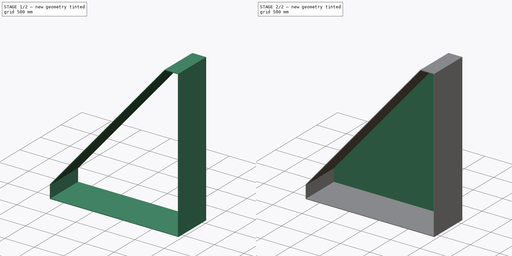
[diagram: build sequence overview — one tinted view per stage of 2, left to right]
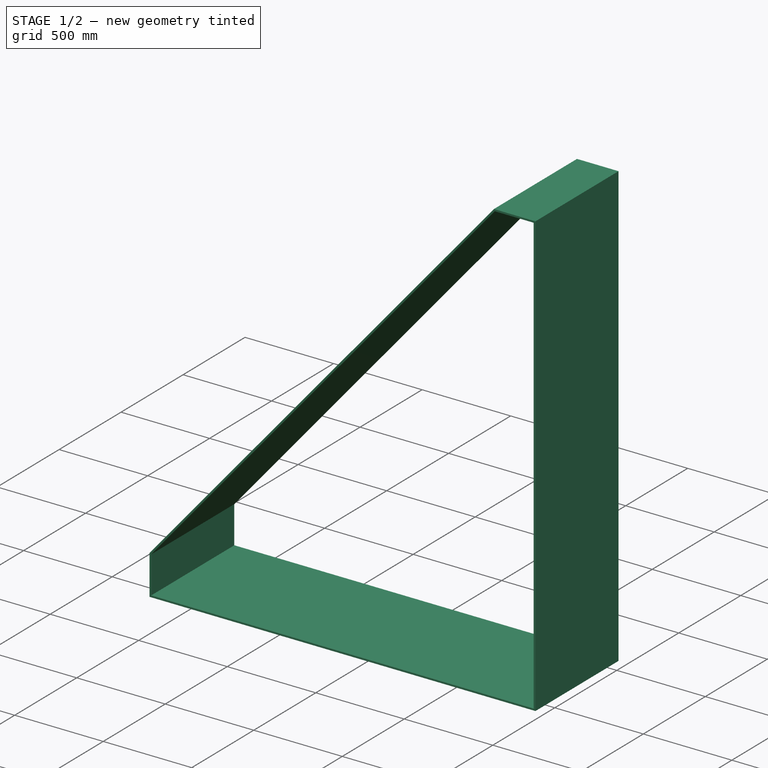
[diagram: stage 1 of 2 — iso view after this stage's code; geometry added in this stage tinted green]
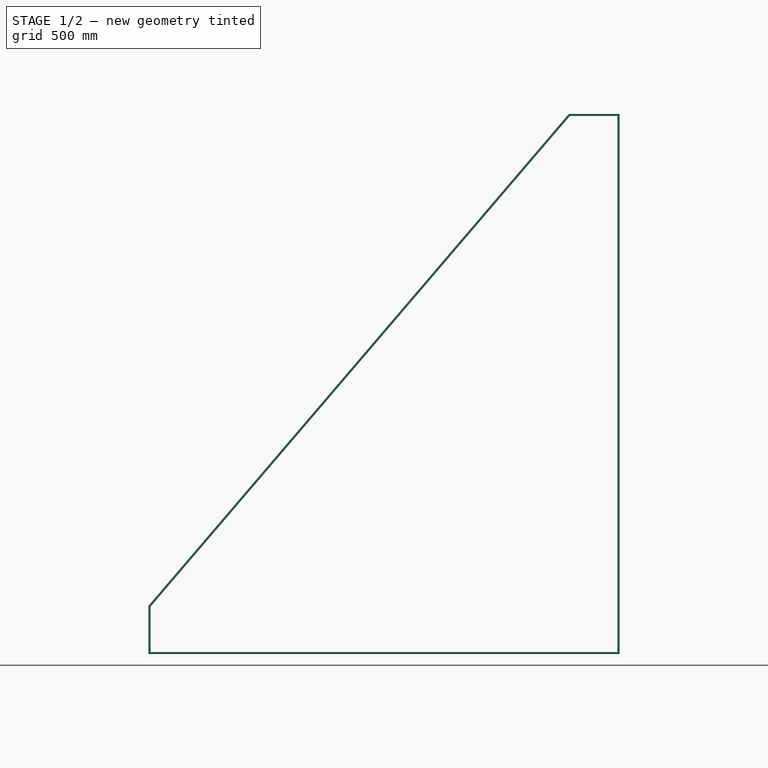
[diagram: stage 1 of 2 — front view after this stage's code; geometry added in this stage tinted green]
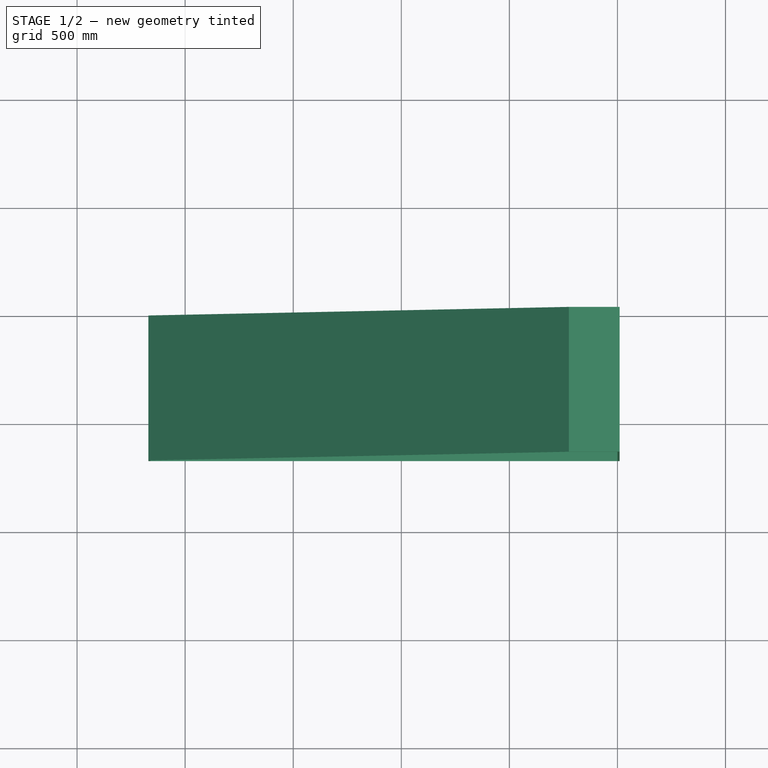
[diagram: stage 1 of 2 — top view after this stage's code; geometry added in this stage tinted green]
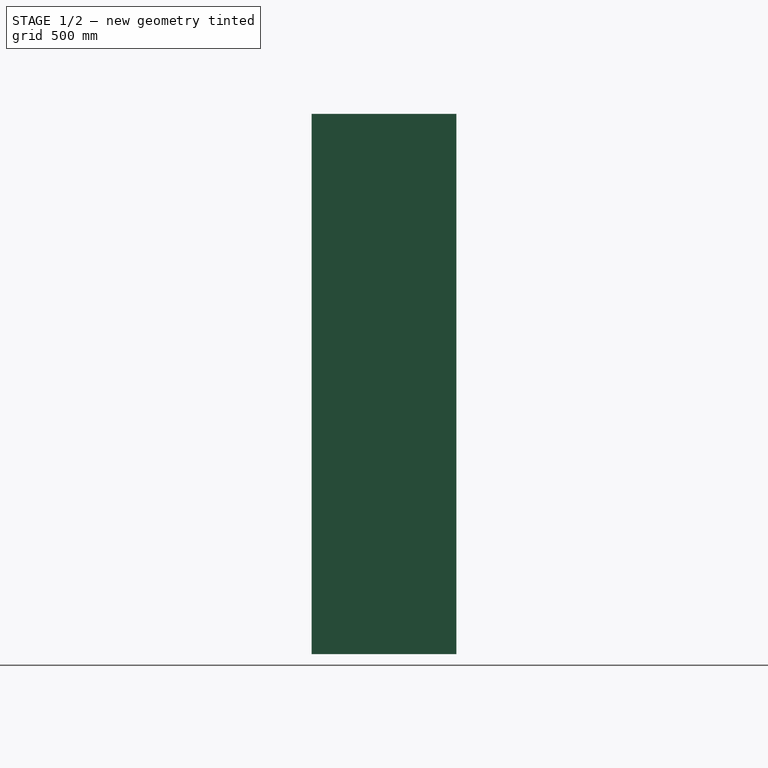
[diagram: stage 1 of 2 — right view after this stage's code; geometry added in this stage tinted green]
FCSTD DOCUMENT  (FreeCAD 1.0RUnknown)
Label: room_corner_chimney_left
License: All rights reserved
LicenseURL: https://en.wikipedia.org/wiki/All_rights_reserved
objects: Sketcher::SketchObject×2, PartDesign::Pad×2, PartDesign::CoordinateSystem×2, PartDesign::Body×1
note: 13 computed .brp shape members not serialized (recipe doc carries the construction recipe); baked Part::Feature solids carry a one-line shape summary decoded from their .brp

FEATURE [Sketcher::SketchObject] Sketch010
  ArcFitTolerance = 1e-06
  AttachmentSupport = -> [XZ_Plane013]
  FullyConstrained = true
  MakeInternals = false
  MapMode = 5
  Placement = pos=(0,0,0) rot=(1,0,0;1.5708rad)
  sketch-geometry (10):
    g0: LineSegment StartX=0 StartY=0 StartZ=0 EndX=-2160 EndY=0 EndZ=0
    g1: LineSegment StartX=-2160 StartY=0 StartZ=0 EndX=-2160 EndY=210 EndZ=0
    g2: LineSegment StartX=0 StartY=0 StartZ=0 EndX=0 EndY=2480 EndZ=0
    g3: LineSegment StartX=0 StartY=2480 StartZ=0 EndX=-220 EndY=2480 EndZ=0
    g4: LineSegment StartX=-2160 StartY=210 StartZ=0 EndX=-220 EndY=2480 EndZ=0
    g5: LineSegment StartX=-2170 StartY=213.691 StartZ=0 EndX=-224.608 EndY=2490 EndZ=0
    g6: LineSegment StartX=10 StartY=2490 StartZ=0 EndX=-224.608 EndY=2490 EndZ=0
    g7: LineSegment StartX=10 StartY=-10 StartZ=0 EndX=10 EndY=2490 EndZ=0
    g8: LineSegment StartX=10 StartY=-10 StartZ=0 EndX=-2170 EndY=-10 EndZ=0
    g9: LineSegment StartX=-2170 StartY=-10 StartZ=0 EndX=-2170 EndY=213.691 EndZ=0
  constraints (23):
    c: Distance(g0) = 2160
    c: Coincident(g0,g-1)
    c: Horizontal(g0)
    c: Distance(g1) = 210
    c: Coincident(g1,g0)
    c: Vertical(g1)
    c: Distance(g2) = 2480
    c: Coincident(g2,g0)
    c: PointOnObject(g2,g-2)
    c: Distance(g3) = 220
    c: Coincident(g3,g2)
    c: Horizontal(g3)
    c: Coincident(g4,g1)
    c: Coincident(g4,g3)
    c: Coincident(g5,g6)
    c: Coincident(g5,g9)
    c: Coincident(g6,g7)
    c: Coincident(g7,g8)
    c: Coincident(g8,g9)
    c: Block(g5)
    c: Block(g6)
    c: Block(g7)
    c: Block(g8)
FEATURE [PartDesign::Pad] Pad010
  Direction = (0,-1,2e-16)
  Length = 670
  Length2 = 10
  Placement = pos=(0,0,0) rot=(1,0,0;1.5708rad)
  Profile = -> Sketch010
  ReferenceAxis = -> Sketch010 [N_Axis]
  Refine = true
  Suppressed = false
  Type = 0
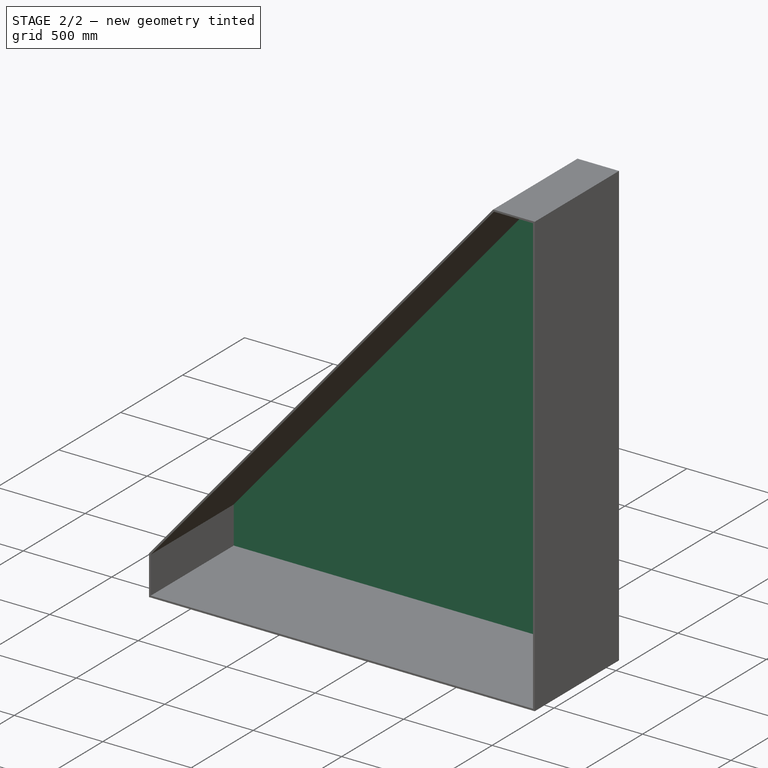
[diagram: stage 2 of 2 — iso view after this stage's code; geometry added in this stage tinted green]
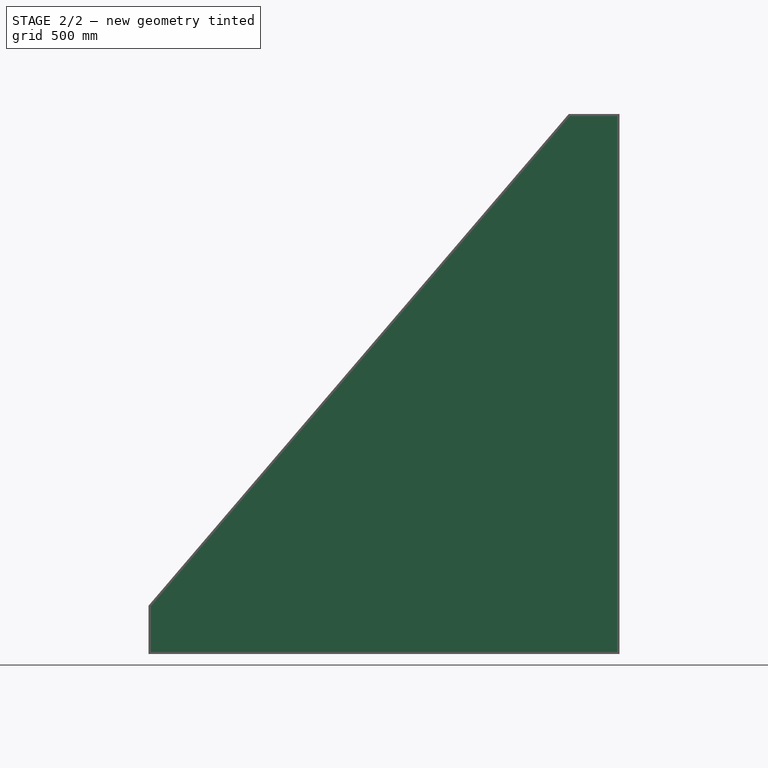
[diagram: stage 2 of 2 — front view after this stage's code; geometry added in this stage tinted green]
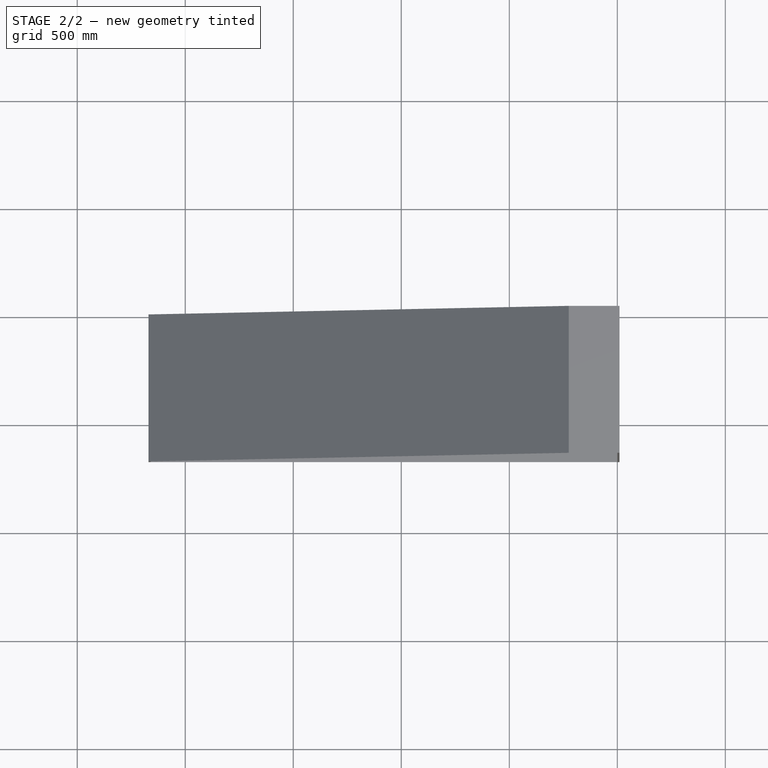
[diagram: stage 2 of 2 — top view after this stage's code; geometry added in this stage tinted green]
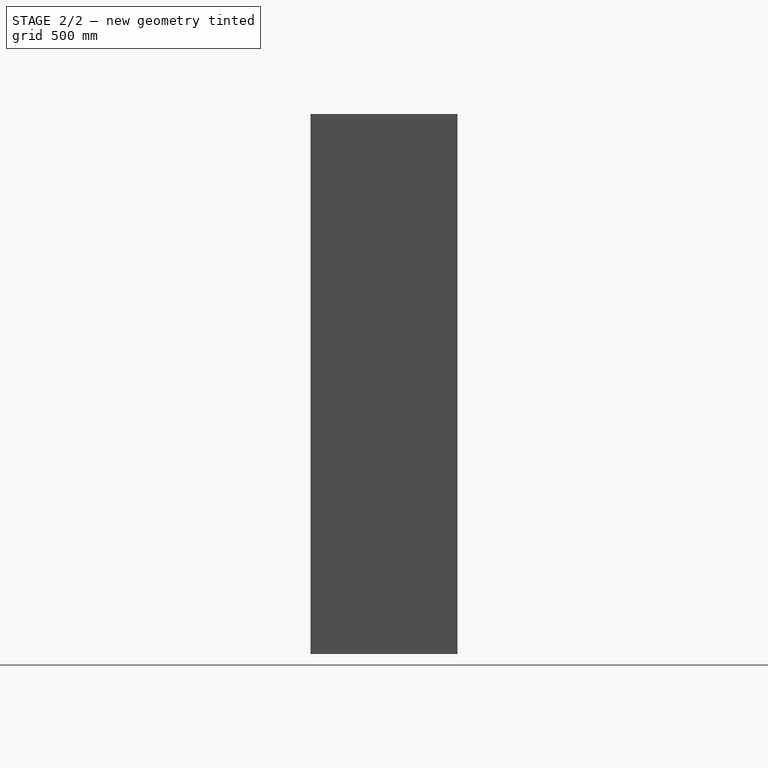
[diagram: stage 2 of 2 — right view after this stage's code; geometry added in this stage tinted green]
FEATURE [Sketcher::SketchObject] Sketch
  ArcFitTolerance = 1e-06
  AttachmentSupport = -> [Pad010]
  ExternalGeometry = -> [Pad010]
  FullyConstrained = true
  MakeInternals = false
  MapMode = 5
  Placement = pos=(0,2.111e-13,0) rot=(-1,0,0;1.5708rad)
  sketch-geometry (5):
    g0: LineSegment StartX=10 StartY=-2490 StartZ=0 EndX=10 EndY=10 EndZ=0
    g1: LineSegment StartX=10 StartY=10 StartZ=0 EndX=-2170 EndY=10 EndZ=0
    g2: LineSegment StartX=-2170 StartY=10 StartZ=0 EndX=-2170 EndY=-213.691 EndZ=0
    g3: LineSegment StartX=-2170 StartY=-213.691 StartZ=0 EndX=-224.608 EndY=-2490 EndZ=0
    g4: LineSegment StartX=-224.608 StartY=-2490 StartZ=0 EndX=10 EndY=-2490 EndZ=0
  constraints (10):
    c: Coincident(g0,g-5)
    c: Coincident(g0,g-4)
    c: Coincident(g1,g0)
    c: Coincident(g1,g-7)
    c: Coincident(g2,g1)
    c: Coincident(g2,g-7)
    c: Coincident(g3,g2)
    c: Coincident(g3,g-6)
    c: Coincident(g4,g3)
    c: Coincident(g4,g0)
FEATURE [PartDesign::Pad] Pad
  BaseFeature = -> Pad010
  Direction = (0,1,2e-16)
  Length = 10
  Length2 = 10
  Placement = pos=(0,0,0) rot=(1,0,0;1.5708rad)
  Profile = -> Sketch
  ReferenceAxis = -> Sketch [N_Axis]
  Refine = true
  Suppressed = false
  Type = 0
FEATURE [PartDesign::CoordinateSystem] LCS_1
  AttacherType = Attacher::AttachEngine3D
  AttachmentSupport = -> [Pad]
  MapMode = 45
  Placement = pos=(-1080,-330,-10) rot=(0,0,1;1.5708rad)
FEATURE [PartDesign::CoordinateSystem] LCS_inner
  AttacherType = Attacher::AttachEngine3D
  AttachmentSupport = -> [Pad]
  MapMode = 7
  Placement = pos=(0,0,0) rot=(0,0.707107,0.707107;3.14159rad)
FEATURE [PartDesign::Body] Body010  label="wall"
  AllowCompound = false
  Group = -> [Sketch010,Pad010,Sketch,Pad,LCS_1,LCS_inner]
  Origin = -> Origin013
  Tip = -> Pad
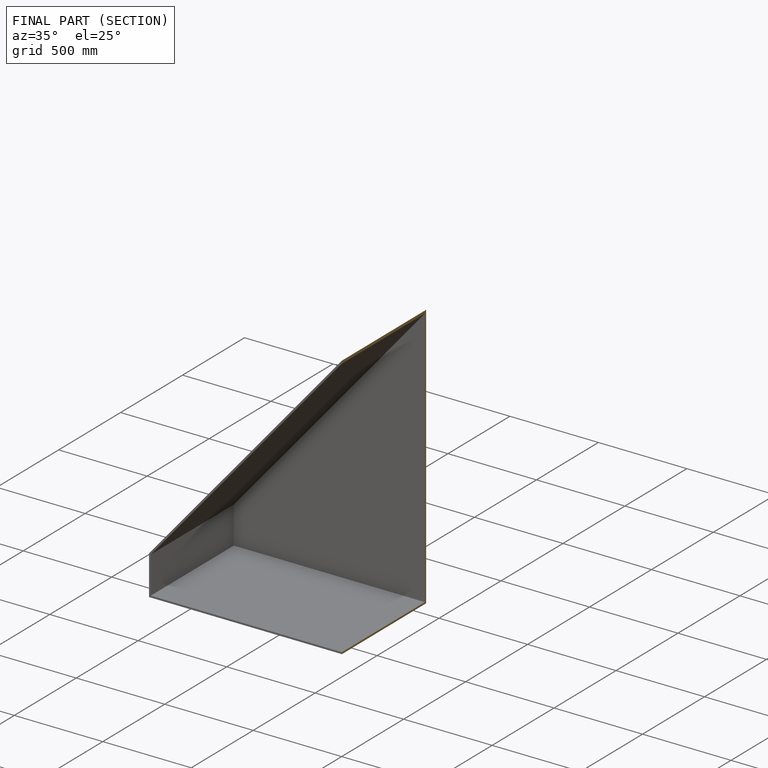
[diagram: finished part — half-section view (interior)]
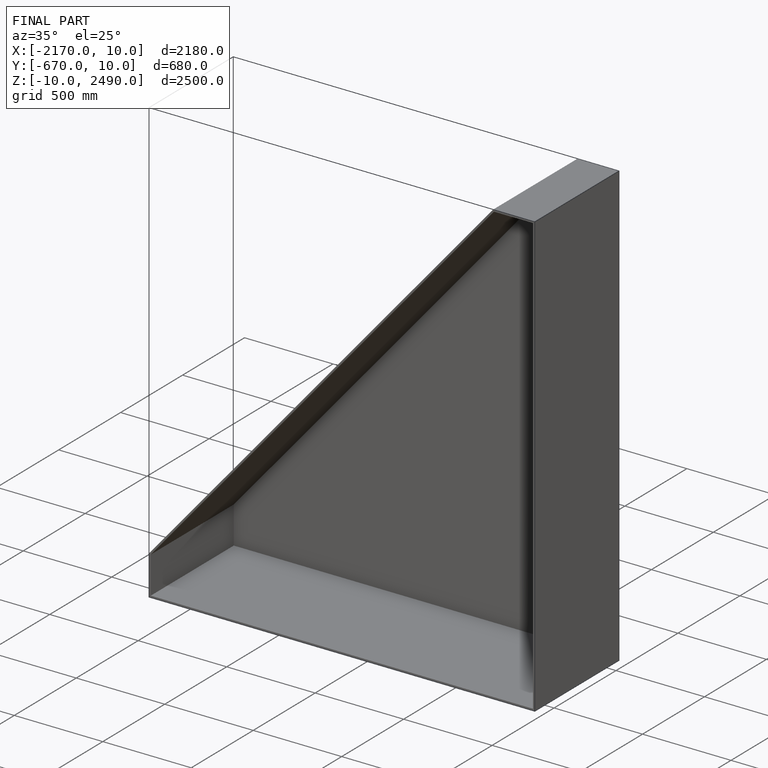
[diagram: finished part — iso view with bounding-box wireframe]
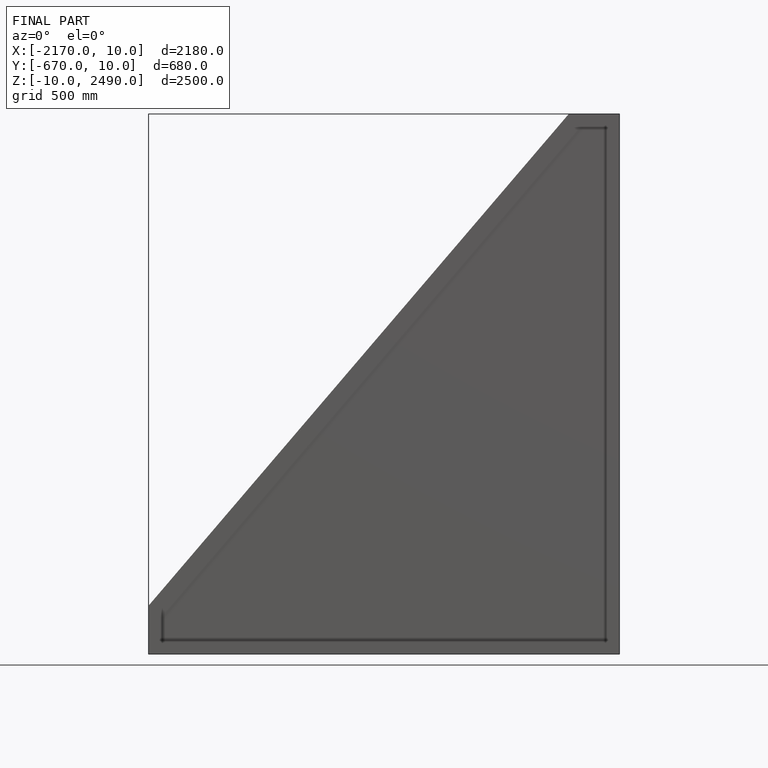
[diagram: finished part — front view with bounding-box wireframe]
